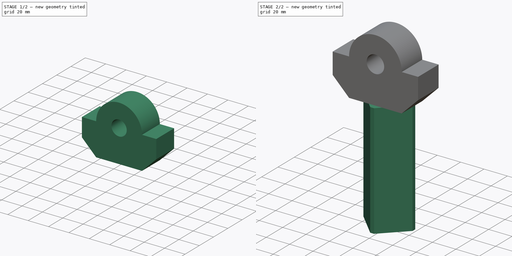
[diagram: build sequence overview — one tinted view per stage of 2, left to right]
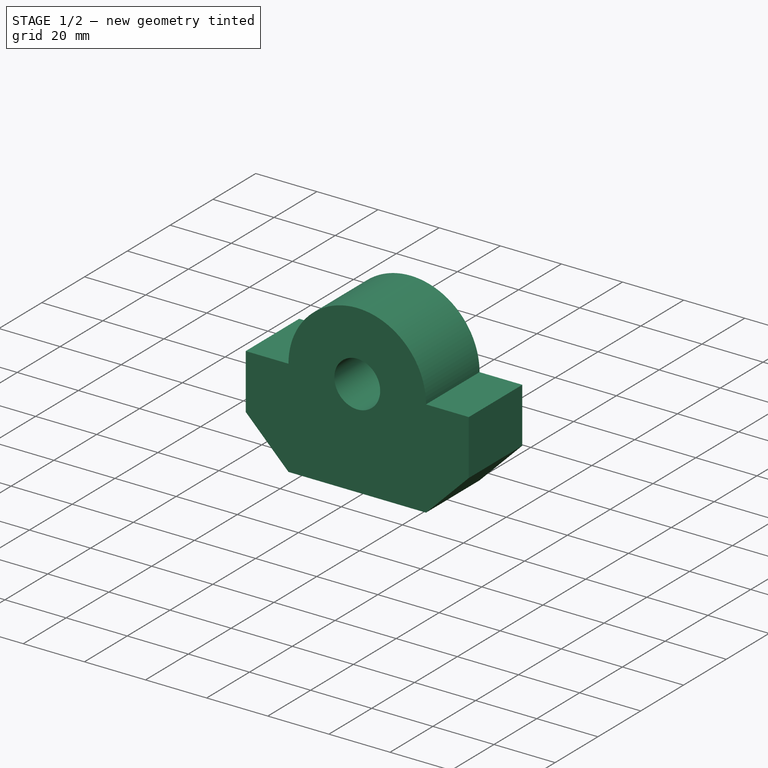
[diagram: stage 1 of 2 — iso view after this stage's code; geometry added in this stage tinted green]
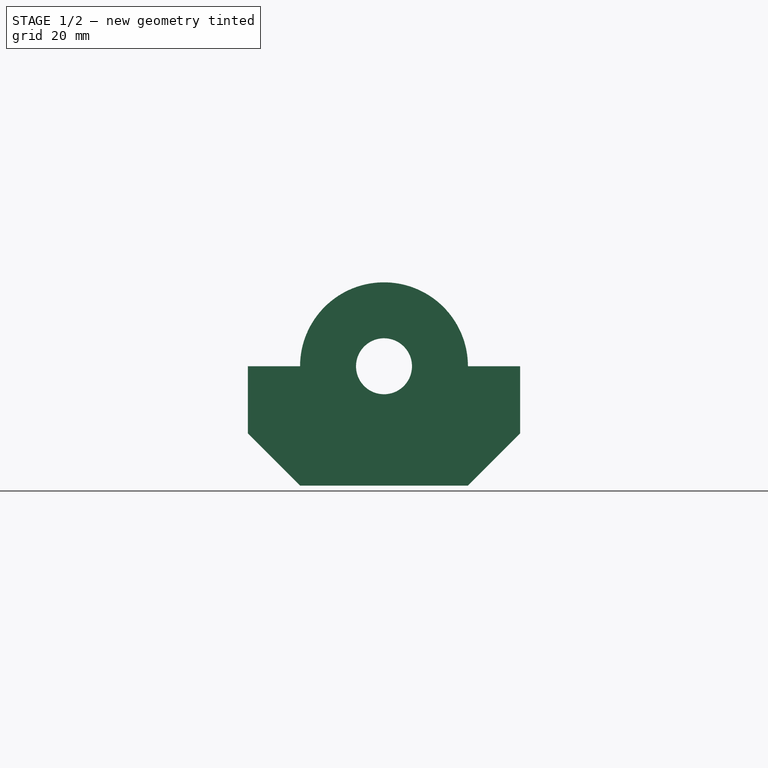
[diagram: stage 1 of 2 — front view after this stage's code; geometry added in this stage tinted green]
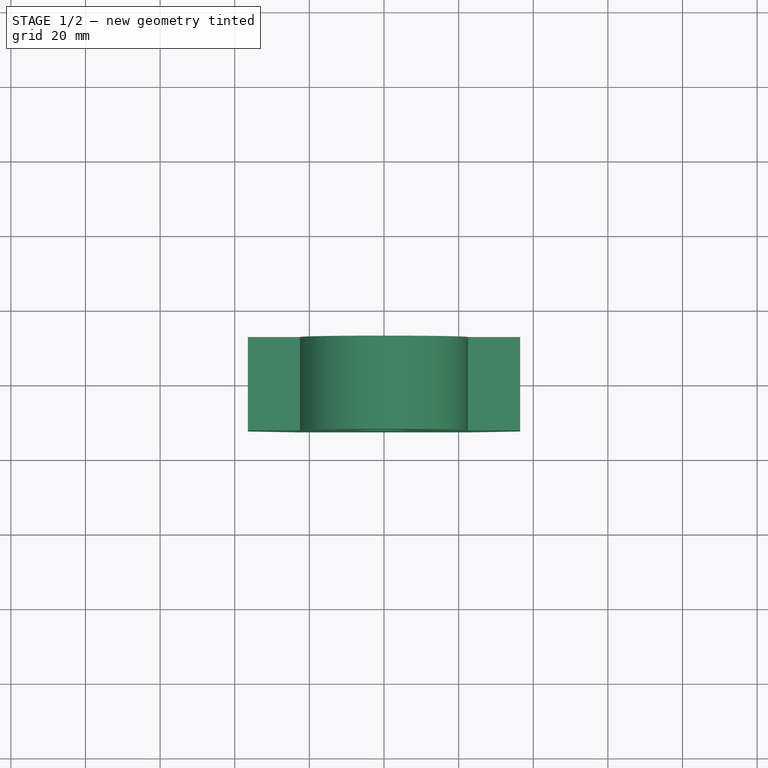
[diagram: stage 1 of 2 — top view after this stage's code; geometry added in this stage tinted green]
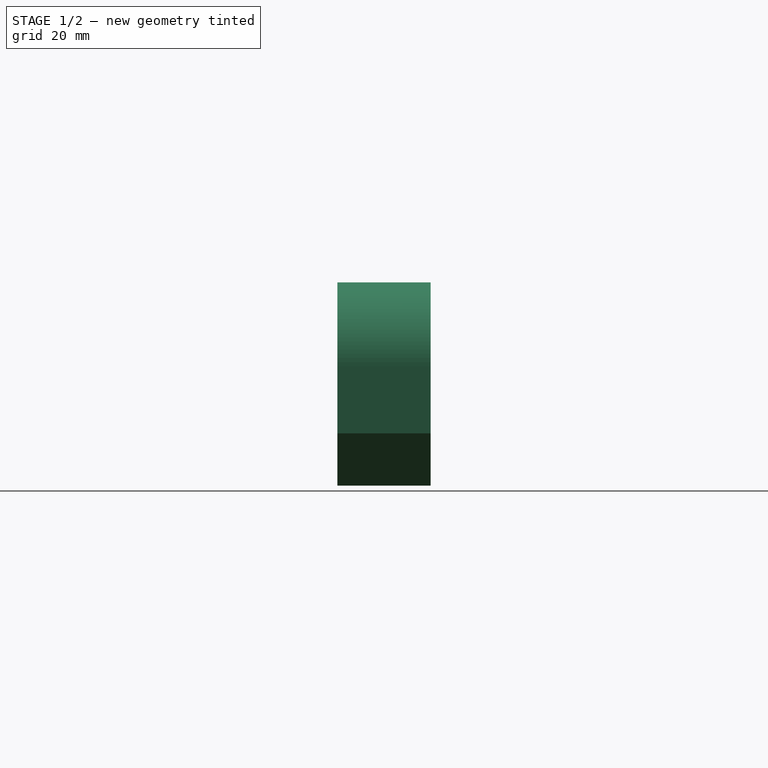
[diagram: stage 1 of 2 — right view after this stage's code; geometry added in this stage tinted green]
FCSTD DOCUMENT  (FreeCAD 0.18.4R)
Label: part11
License: All rights reserved
LicenseURL: http://en.wikipedia.org/wiki/All_rights_reserved
objects: Sketcher::SketchObject×3, PartDesign::Pad×2, PartDesign::Hole×1, PartDesign::Body×1, App::Part×1
note: 10 computed .brp shape members not serialized (recipe doc carries the construction recipe); baked Part::Feature solids carry a one-line shape summary decoded from their .brp

FEATURE [Sketcher::SketchObject] Sketch
  MapMode = 5
  Placement = pos=(0,0,0) rot=(1,0,0;1.5708rad)
  Support = -> [XZ_Plane002]
  sketch-geometry (8):
    g0: ArcOfCircle CenterX=7e-16 CenterY=0 CenterZ=0 NormalX=0 NormalY=0 NormalZ=1 AngleXU=0 Radius=22.5 StartAngle=0 EndAngle=3.14159
    g1: LineSegment StartX=22.5 StartY=0 StartZ=0 EndX=36.5 EndY=0 EndZ=0
    g2: LineSegment StartX=36.5 StartY=0 StartZ=0 EndX=36.5 EndY=-18 EndZ=0
    g3: LineSegment StartX=36.5 StartY=-18 StartZ=0 EndX=22.5 EndY=-32 EndZ=0
    g4: LineSegment StartX=22.5 StartY=-32 StartZ=0 EndX=-22.5 EndY=-32 EndZ=0
    g5: LineSegment StartX=-22.5 StartY=-32 StartZ=0 EndX=-36.5 EndY=-18 EndZ=0
    g6: LineSegment StartX=-36.5 StartY=-18 StartZ=0 EndX=-36.5 EndY=0 EndZ=0
    g7: LineSegment StartX=-36.5 StartY=0 StartZ=0 EndX=-22.5 EndY=0 EndZ=0
  constraints (21):
    c: Coincident(g1,g0)
    c: Coincident(g2,g1)
    c: Coincident(g3,g2)
    c: Coincident(g4,g3)
    c: Coincident(g6,g5)
    c: Coincident(g7,g6)
    c: Coincident(g7,g0)
    c: Symmetric(g4,g3,g-2)
    c: Symmetric(g5,g2,g-2)
    c: Symmetric(g6,g1,g-2)
    c: Symmetric(g0,g0,g-2)
    c: Horizontal(g7)
    c: Vertical(g6)
    c: Perpendicular(g0,g7)
    c: Coincident(g0,g-1)
    c: DistanceY(g2,g1) = 18
    c: DistanceY(g3,g1) = 32
    c: Coincident(g5,g4)
    c: DistanceX(g4,g3) = 45
    c: Radius(g0) = 22.5
    c: Angle(g3,g4) = 2.35619
FEATURE [PartDesign::Pad] Pad
  Length = 25
  Length2 = 100
  Midplane = true
  Placement = pos=(0,0,0) rot=(1,0,0;1.5708rad)
  Profile = -> Sketch
  Type = 0
FEATURE [Sketcher::SketchObject] Sketch001
  MapMode = 5
  Placement = pos=(0,-12.5,2.8e-15) rot=(1,0,0;1.5708rad)
  Support = -> [Pad]
  sketch-geometry (1):
    g0: Circle CenterX=0 CenterY=0 CenterZ=0 NormalX=0 NormalY=0 NormalZ=1 AngleXU=0 Radius=8.75643
  constraints (1):
    c: Coincident(g0,g-1)
FEATURE [PartDesign::Hole] Hole
  BaseFeature = -> Pad
  Depth = 25
  DepthType = 1
  Diameter = 15
  DrillPoint = 1
  DrillPointAngle = 118
  HoleCutCountersinkAngle = 90
  HoleCutDepth = 0
  HoleCutDiameter = 0
  HoleCutType = 0
  ModelActualThread = false
  Placement = pos=(0,0,0) rot=(1,0,0;1.5708rad)
  Profile = -> Sketch001
  Tapered = false
  TaperedAngle = 90
  ThreadAngle = 0
  ThreadClass = 0
  ThreadCutOffInner = 0
  ThreadCutOffOuter = 0
  ThreadDirection = 0
  ThreadFit = 0
  ThreadPitch = 0
  ThreadSize = 0
  ThreadType = 0
  Threaded = false
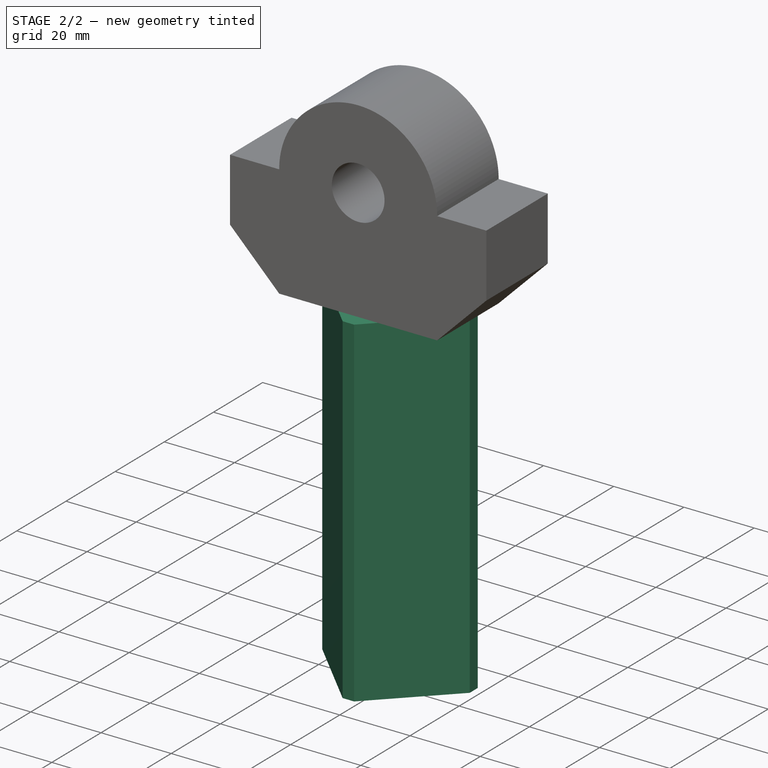
[diagram: stage 2 of 2 — iso view after this stage's code; geometry added in this stage tinted green]
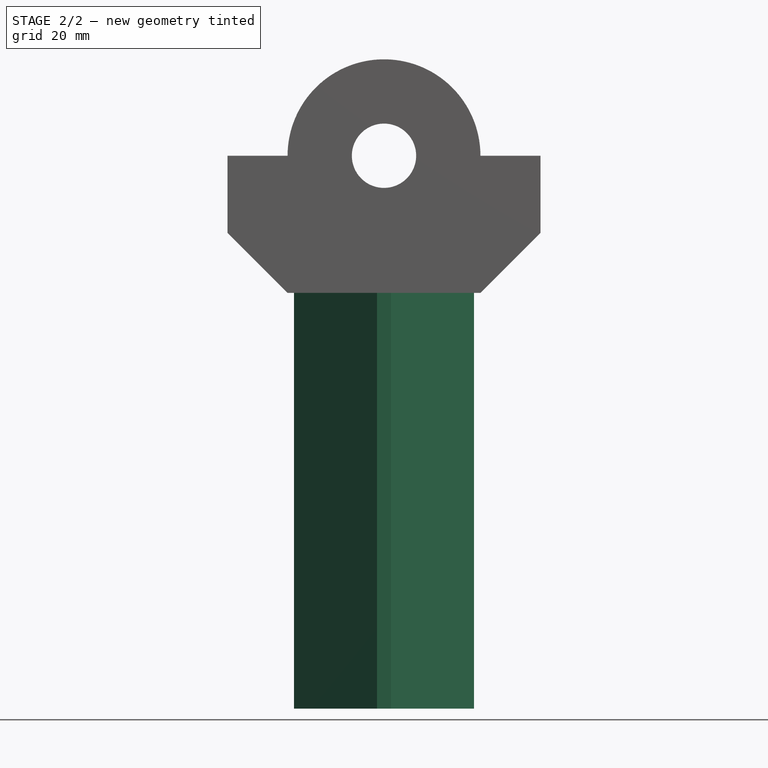
[diagram: stage 2 of 2 — front view after this stage's code; geometry added in this stage tinted green]
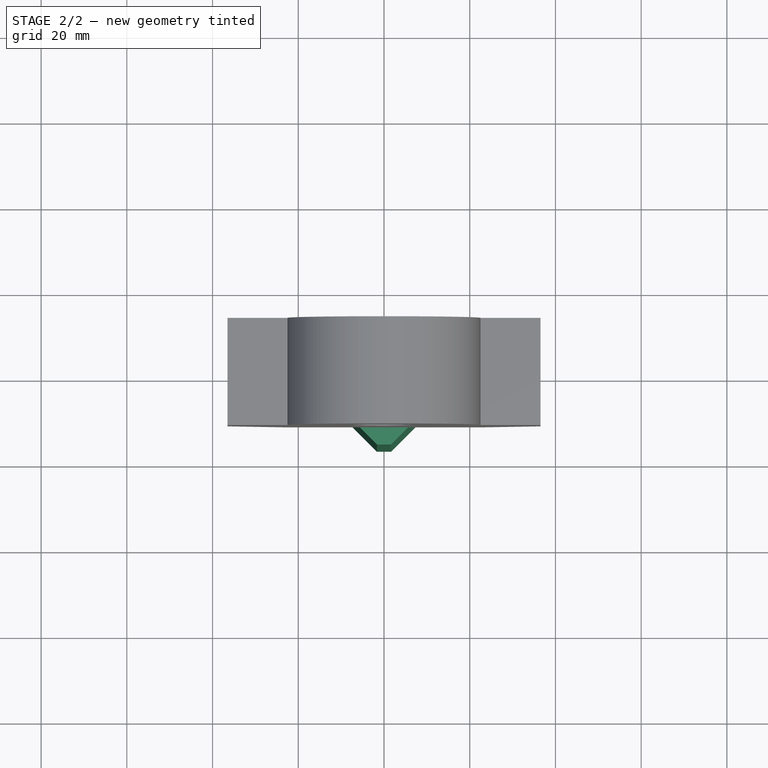
[diagram: stage 2 of 2 — top view after this stage's code; geometry added in this stage tinted green]
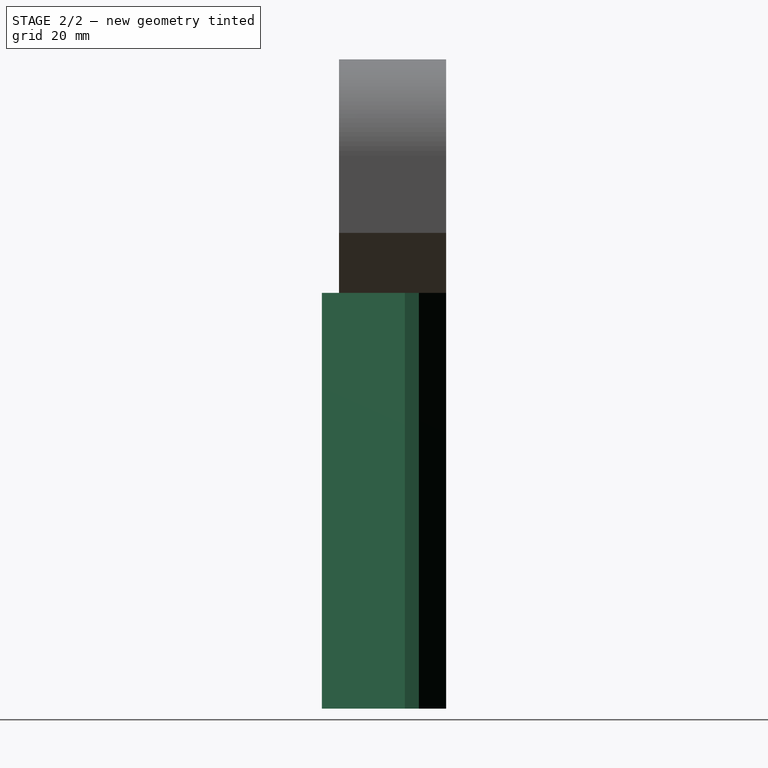
[diagram: stage 2 of 2 — right view after this stage's code; geometry added in this stage tinted green]
FEATURE [Sketcher::SketchObject] Sketch002
  MapMode = 5
  Placement = pos=(0,-1.41e-14,-32) rot=(1,0,0;3.14159rad)
  Support = -> [Pad]
  sketch-geometry (8):
    g0: LineSegment StartX=-21 StartY=-2.87258 StartZ=0 EndX=-1.62742 EndY=16.5 EndZ=0
    g1: LineSegment StartX=-1.62742 StartY=16.5 StartZ=0 EndX=1.62742 EndY=16.5 EndZ=0
    g2: LineSegment StartX=1.62742 StartY=16.5 StartZ=0 EndX=21 EndY=-2.87258 EndZ=0
    g3: LineSegment StartX=21 StartY=-2.87258 StartZ=0 EndX=21 EndY=-6.12742 EndZ=0
    g4: LineSegment StartX=21 StartY=-6.12742 StartZ=0 EndX=14.6274 EndY=-12.5 EndZ=0
    g5: LineSegment StartX=14.6274 StartY=-12.5 StartZ=0 EndX=-14.6274 EndY=-12.5 EndZ=0
    g6: LineSegment StartX=-14.6274 StartY=-12.5 StartZ=0 EndX=-21 EndY=-6.12742 EndZ=0
    g7: LineSegment StartX=-21 StartY=-6.12742 StartZ=0 EndX=-21 EndY=-2.87258 EndZ=0
  constraints (20):
    c: Coincident(g0,g1)
    c: Coincident(g1,g2)
    c: Coincident(g2,g3)
    c: Coincident(g3,g4)
    c: Coincident(g4,g5)
    c: Coincident(g5,g6)
    c: Coincident(g6,g7)
    c: Coincident(g7,g0)
    c: Symmetric(g5,g4,g-2)
    c: Symmetric(g6,g3,g-2)
    c: Symmetric(g0,g2,g-2)
    c: Symmetric(g0,g1,g-2)
    c: Vertical(g7)
    c: DistanceX(g0,g2) = 42
    c: DistanceY(g4,g1) = 29
    c: Angle(g0,g1) = 2.35619
    c: Angle(g5,g6) = 2.35619
    c: Equal(g7,g1)
    c: Distance(g1,g6) = 32
    c: DistanceY(g5,g-1) = 12.5
FEATURE [PartDesign::Pad] Pad001
  BaseFeature = -> Hole
  Length = 97
  Length2 = 100
  Placement = pos=(0,0,0) rot=(1,0,0;1.5708rad)
  Profile = -> Sketch002
  Type = 0
FEATURE [PartDesign::Body] Body
  Group = -> [Sketch,Pad,Sketch001,Hole,Sketch002,Pad001]
  Origin = -> Origin002
  Tip = -> Pad001
FEATURE [App::Part] Part  label="part11"
  Group = -> [Body]
  Origin = -> Origin
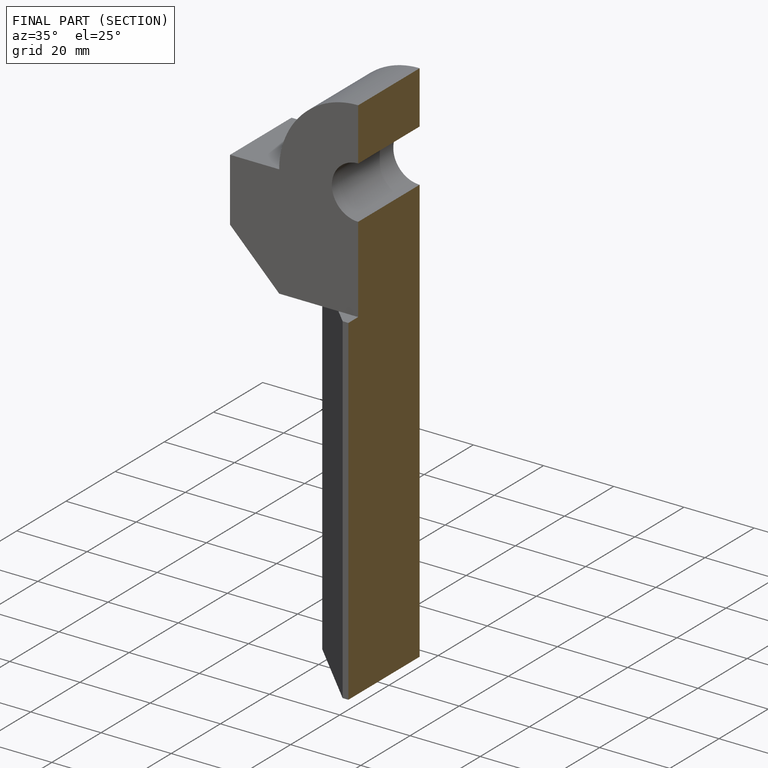
[diagram: finished part — half-section view (interior)]
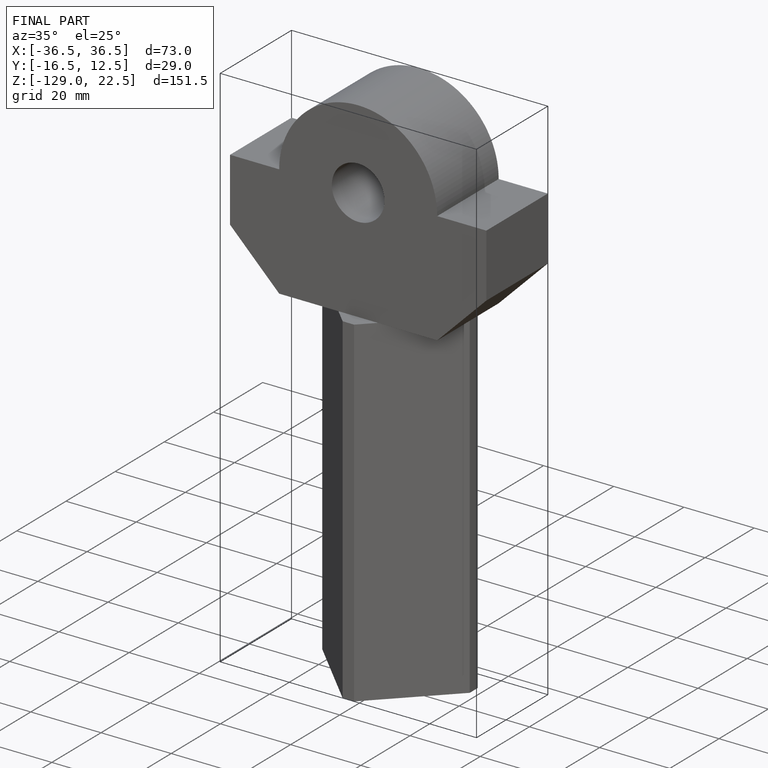
[diagram: finished part — iso view with bounding-box wireframe]
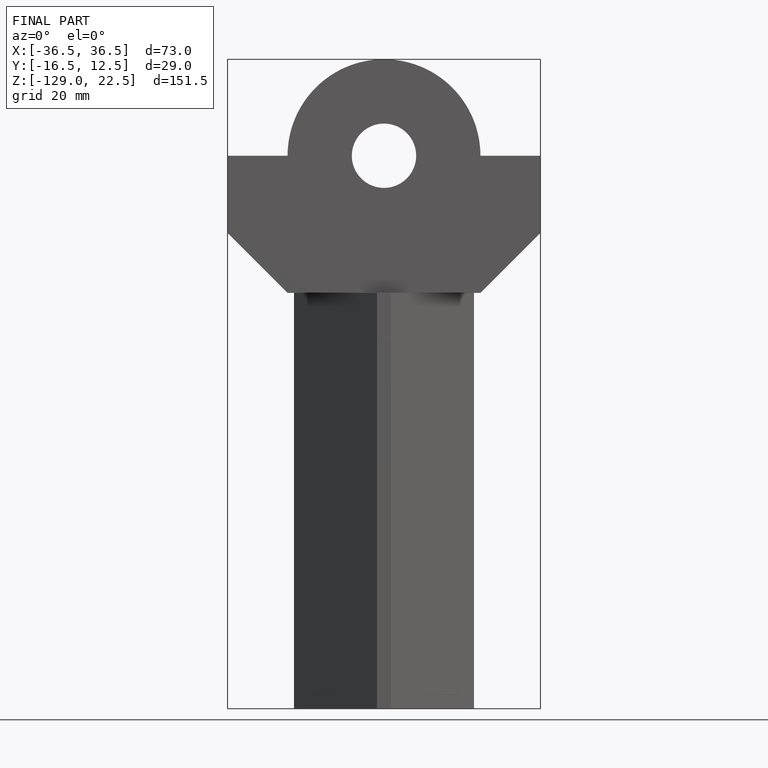
[diagram: finished part — front view with bounding-box wireframe]
